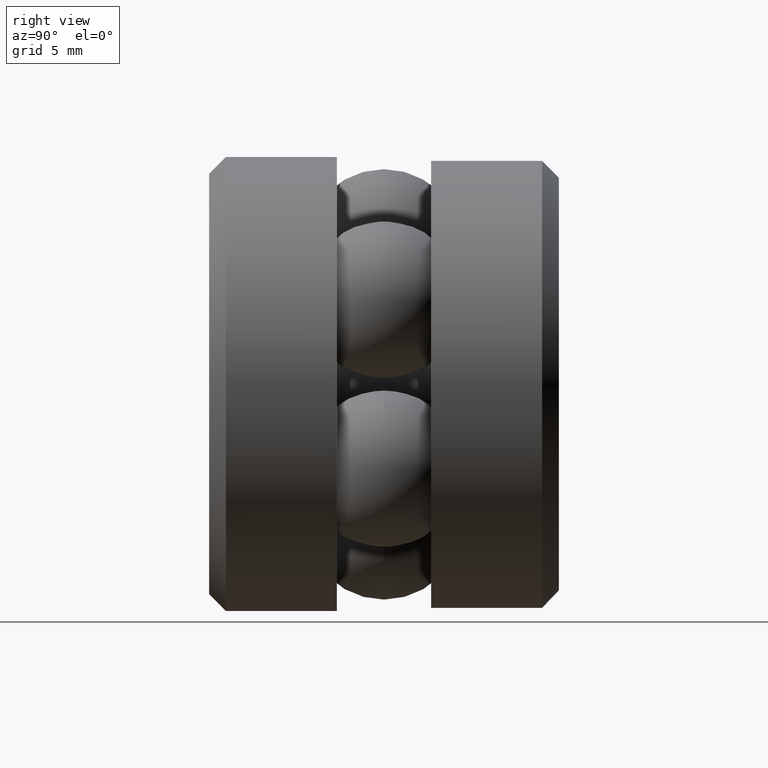
[diagram: clean part render]
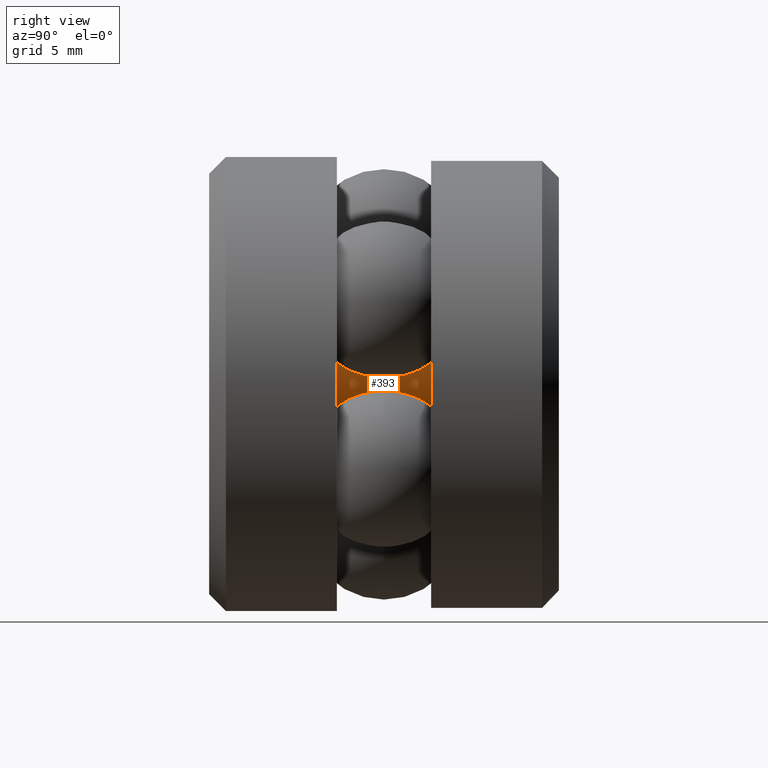
[diagram: same view with one face highlighted and labeled with its STEP entity id]
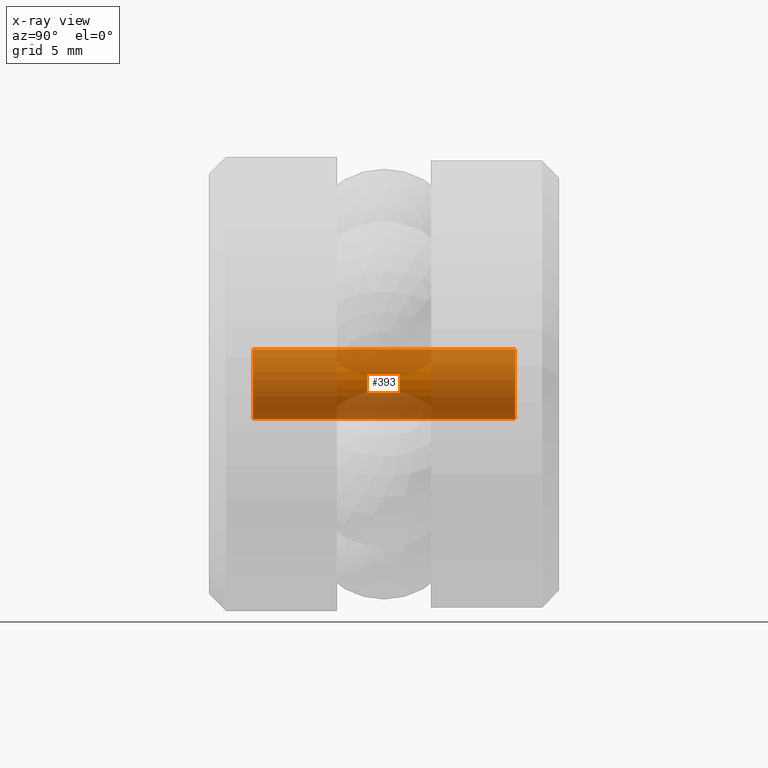
[diagram: x-ray of the same camera — body ghosted, the highlighted face saturated]
A machine part, right view. The second image highlights one B-rep face of the part: STEP entity #393.
The next image is the same camera in x-ray: the body ghosted, the highlighted face saturated — about 88% of this face is hidden behind the body in this view.
In plain terms, the highlighted cylindrical surface (bore or boss wall) has radius 1.5875 mm, axis along (-0, 1, -0).
Its self-contained STEP definition (entity closure, byte-faithful):
#44 = DIRECTION ( 'NONE',  ( -0.0000000000000000000, 1.000000000000000000, -0.0000000000000000000 ) ) ;
#51 = CARTESIAN_POINT ( 'NONE',  ( 0.0000000000000000000, 0.5468750000000000000, 0.0000000000000000000 ) ) ;
#56 = CYLINDRICAL_SURFACE ( 'NONE', #247, 0.06250000000000005600 ) ;
#78 = EDGE_LOOP ( 'NONE', ( #262 ) ) ;
#127 = DIRECTION ( 'NONE',  ( -0.0000000000000000000, 1.000000000000000000, -0.0000000000000000000 ) ) ;
#152 = AXIS2_PLACEMENT_3D ( 'NONE', #51, #44, #249 ) ;
#165 = VERTEX_POINT ( 'NONE', #207 ) ;
#176 = FACE_OUTER_BOUND ( 'NONE', #223, .T. ) ;
#177 = DIRECTION ( 'NONE',  ( 0.0000000000000000000, 0.0000000000000000000, 1.000000000000000000 ) ) ;
#192 = VERTEX_POINT ( 'NONE', #420 ) ;
#201 = EDGE_CURVE ( 'NONE', #192, #192, #351, .T. ) ;
#207 = CARTESIAN_POINT ( 'NONE',  ( 0.0000000000000000000, 0.07812499999999998600, 0.06250000000000001400 ) ) ;
#223 = EDGE_LOOP ( 'NONE', ( #323 ) ) ;
#247 = AXIS2_PLACEMENT_3D ( 'NONE', #327, #518, #306 ) ;
#249 = DIRECTION ( 'NONE',  ( 0.0000000000000000000, 0.0000000000000000000, 1.000000000000000000 ) ) ;
#259 = CARTESIAN_POINT ( 'NONE',  ( 0.0000000000000000000, 0.07812499999999998600, 0.0000000000000000000 ) ) ;
#262 = ORIENTED_EDGE ( 'NONE', *, *, #201, .F. ) ;
#306 = DIRECTION ( 'NONE',  ( 0.0000000000000000000, 0.0000000000000000000, 1.000000000000000000 ) ) ;
#323 = ORIENTED_EDGE ( 'NONE', *, *, #494, .T. ) ;
#327 = CARTESIAN_POINT ( 'NONE',  ( 0.0000000000000000000, 0.0000000000000000000, 0.0000000000000000000 ) ) ;
#351 = CIRCLE ( 'NONE', #152, 0.06250000000000009700 ) ;
#353 = CIRCLE ( 'NONE', #432, 0.06250000000000001400 ) ;
#393 = ADVANCED_FACE ( 'NONE', ( #176, #406 ), #56, .T. ) ;
#406 = FACE_OUTER_BOUND ( 'NONE', #78, .T. ) ;
#420 = CARTESIAN_POINT ( 'NONE',  ( 0.0000000000000000000, 0.5468750000000000000, 0.06250000000000009700 ) ) ;
#432 = AXIS2_PLACEMENT_3D ( 'NONE', #259, #127, #177 ) ;
#494 = EDGE_CURVE ( 'NONE', #165, #165, #353, .T. ) ;
#518 = DIRECTION ( 'NONE',  ( -0.0000000000000000000, 1.000000000000000000, -0.0000000000000000000 ) ) ;